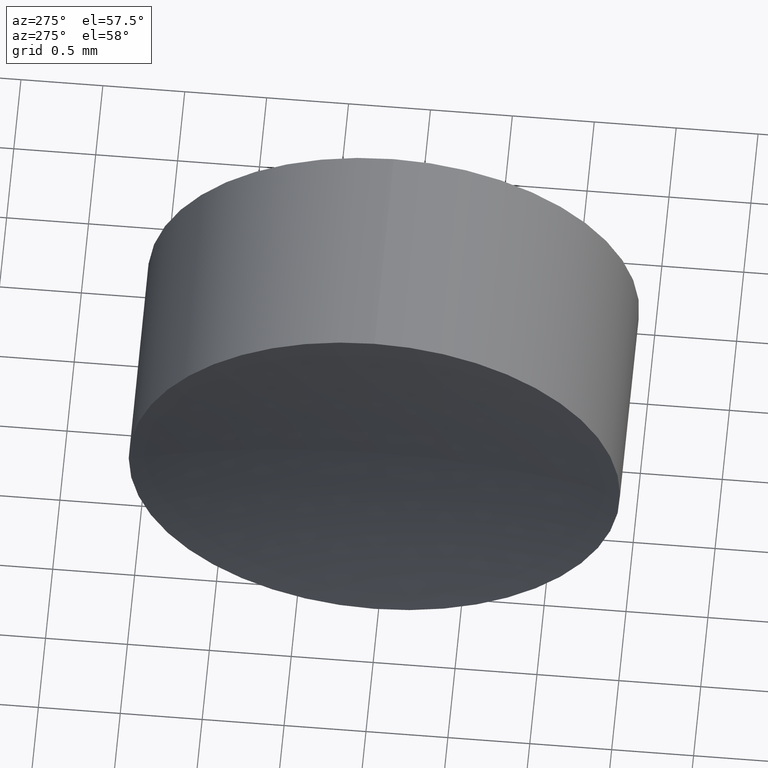
[diagram: clean part render]
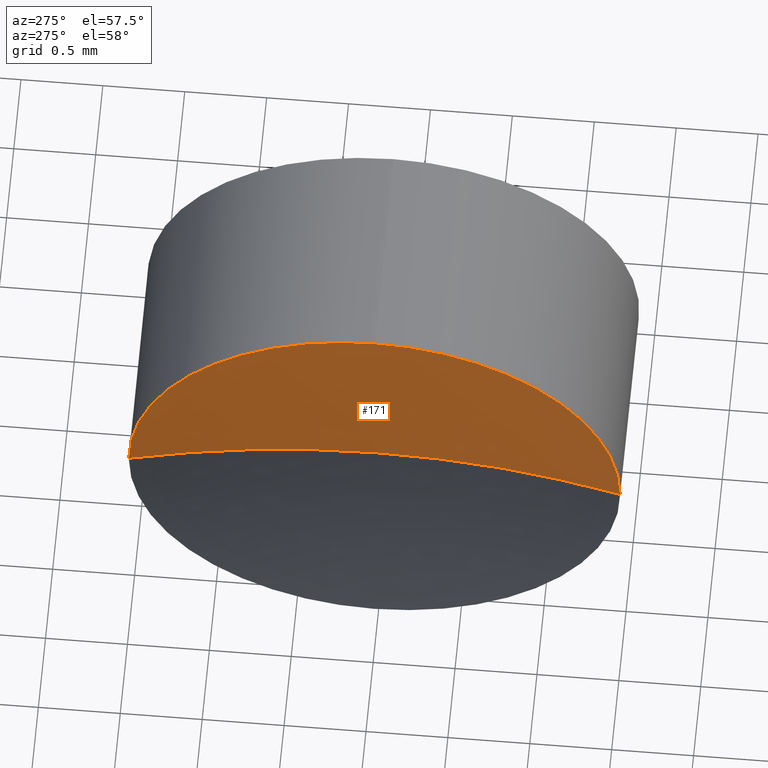
[diagram: same view with one face highlighted and labeled with its STEP entity id]
A machine part, auxiliary view. The second image highlights one B-rep face of the part: STEP entity #171.
In plain terms, the highlighted spherical surface has radius 6.67 mm.
Its self-contained STEP definition (entity closure, byte-faithful):
#3 = CIRCLE ( 'NONE', #198, 1.499999999999996900 ) ;
#5 = DIRECTION ( 'NONE',  ( 0.0000000000000000000, 0.0000000000000000000, -1.000000000000000000 ) ) ;
#7 = DIRECTION ( 'NONE',  ( 0.0000000000000000000, 0.0000000000000000000, 1.000000000000000000 ) ) ;
#21 = CARTESIAN_POINT ( 'NONE',  ( 11.34326470139478900, 8.022260287298737000, 0.0000000000000000000 ) ) ;
#24 = DIRECTION ( 'NONE',  ( 0.0000000000000000000, 1.000000000000000000, 1.224646799147353200E-016 ) ) ;
#25 = CARTESIAN_POINT ( 'NONE',  ( 11.34326470139479100, 6.522260287298739600, 0.0000000000000000000 ) ) ;
#26 = DIRECTION ( 'NONE',  ( 1.000000000000000000, 0.0000000000000000000, 0.0000000000000000000 ) ) ;
#33 = AXIS2_PLACEMENT_3D ( 'NONE', #161, #5, #140 ) ;
#40 = DIRECTION ( 'NONE',  ( -1.000000000000000000, -0.0000000000000000000, -0.0000000000000000000 ) ) ;
#43 = ORIENTED_EDGE ( 'NONE', *, *, #193, .T. ) ;
#56 = EDGE_CURVE ( 'NONE', #123, #173, #105, .T. ) ;
#57 = SPHERICAL_SURFACE ( 'NONE', #33, 6.669999999999999000 ) ;
#68 = DIRECTION ( 'NONE',  ( 0.0000000000000000000, 0.0000000000000000000, 1.000000000000000000 ) ) ;
#69 = ORIENTED_EDGE ( 'NONE', *, *, #191, .F. ) ;
#71 = CARTESIAN_POINT ( 'NONE',  ( 11.34326470139479100, 6.522260287298739600, 1.499999999999996900 ) ) ;
#79 = EDGE_CURVE ( 'NONE', #173, #168, #3, .T. ) ;
#86 = CARTESIAN_POINT ( 'NONE',  ( 11.34326470139478900, 5.022260287298740500, -1.836970198721027700E-016 ) ) ;
#97 = CARTESIAN_POINT ( 'NONE',  ( 4.844118603637024700, 6.522260287298738700, 0.0000000000000000000 ) ) ;
#101 = CARTESIAN_POINT ( 'NONE',  ( 11.51411860363702300, 6.522260287298738700, 0.0000000000000000000 ) ) ;
#105 = CIRCLE ( 'NONE', #186, 6.669999999999999000 ) ;
#117 = CARTESIAN_POINT ( 'NONE',  ( 11.34326470139479100, 6.522260287298739600, 0.0000000000000000000 ) ) ;
#122 = CIRCLE ( 'NONE', #126, 6.669999999999998200 ) ;
#123 = VERTEX_POINT ( 'NONE', #101 ) ;
#126 = AXIS2_PLACEMENT_3D ( 'NONE', #97, #68, #26 ) ;
#140 = DIRECTION ( 'NONE',  ( 0.0000000000000000000, 1.000000000000000000, 0.0000000000000000000 ) ) ;
#141 = DIRECTION ( 'NONE',  ( -1.000000000000000000, -0.0000000000000000000, -0.0000000000000000000 ) ) ;
#143 = DIRECTION ( 'NONE',  ( 0.0000000000000000000, 0.0000000000000000000, 1.000000000000000000 ) ) ;
#144 = AXIS2_PLACEMENT_3D ( 'NONE', #117, #40, #143 ) ;
#157 = ORIENTED_EDGE ( 'NONE', *, *, #56, .T. ) ;
#160 = CARTESIAN_POINT ( 'NONE',  ( 4.844118603637024700, 6.522260287298738700, 0.0000000000000000000 ) ) ;
#161 = CARTESIAN_POINT ( 'NONE',  ( 4.844118603637024700, 6.522260287298738700, 0.0000000000000000000 ) ) ;
#164 = CIRCLE ( 'NONE', #144, 1.499999999999996900 ) ;
#166 = EDGE_LOOP ( 'NONE', ( #69, #157, #181, #43 ) ) ;
#168 = VERTEX_POINT ( 'NONE', #71 ) ;
#169 = VERTEX_POINT ( 'NONE', #21 ) ;
#171 = ADVANCED_FACE ( 'NONE', ( #196 ), #57, .F. ) ;
#173 = VERTEX_POINT ( 'NONE', #86 ) ;
#174 = DIRECTION ( 'NONE',  ( 0.0000000000000000000, 1.224646799147353200E-016, -1.000000000000000000 ) ) ;
#181 = ORIENTED_EDGE ( 'NONE', *, *, #79, .T. ) ;
#186 = AXIS2_PLACEMENT_3D ( 'NONE', #160, #174, #24 ) ;
#191 = EDGE_CURVE ( 'NONE', #123, #169, #122, .T. ) ;
#193 = EDGE_CURVE ( 'NONE', #168, #169, #164, .T. ) ;
#196 = FACE_OUTER_BOUND ( 'NONE', #166, .T. ) ;
#198 = AXIS2_PLACEMENT_3D ( 'NONE', #25, #141, #7 ) ;